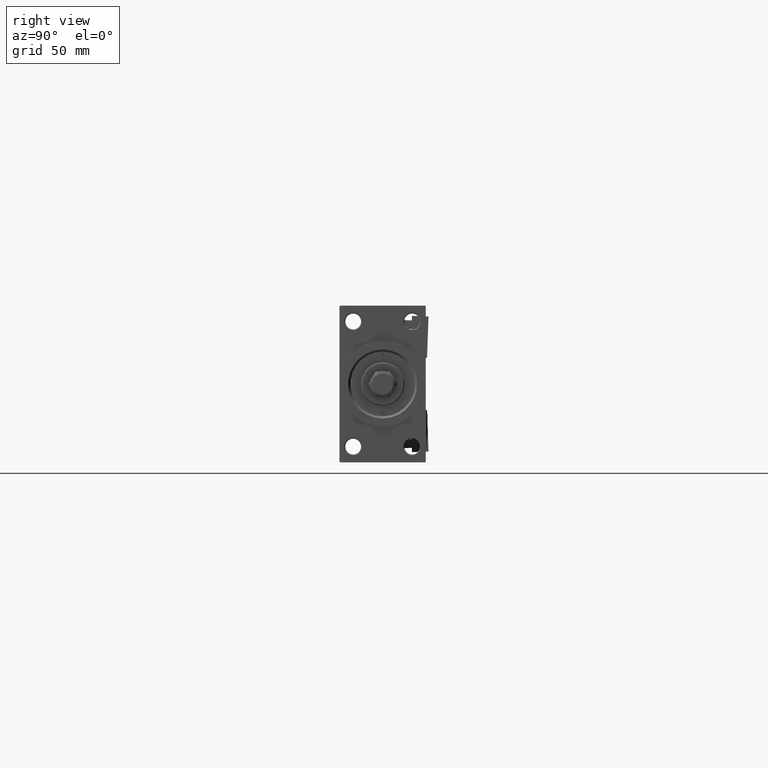
[diagram: clean part render]
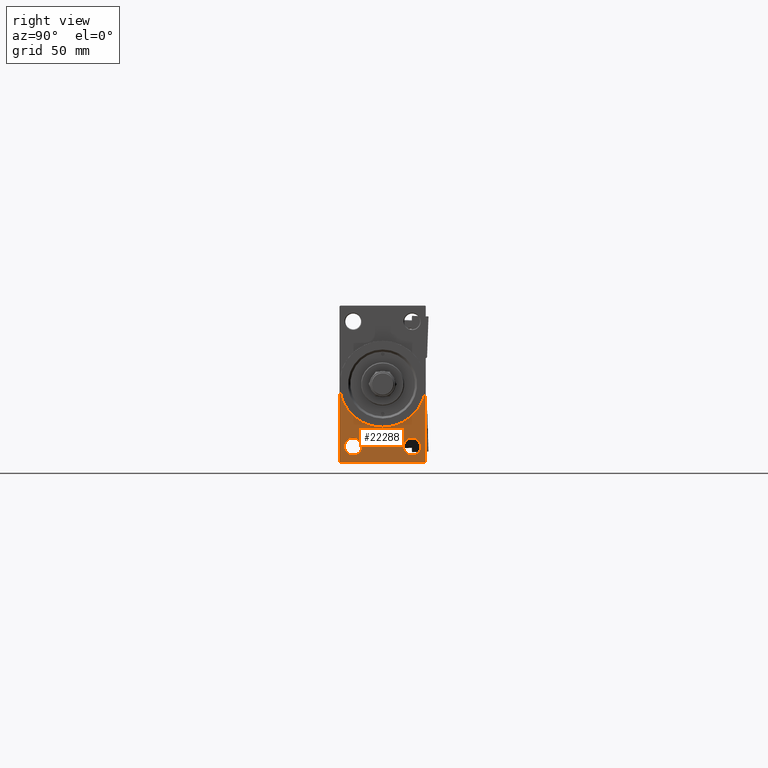
[diagram: same view with one face highlighted and labeled with its STEP entity id]
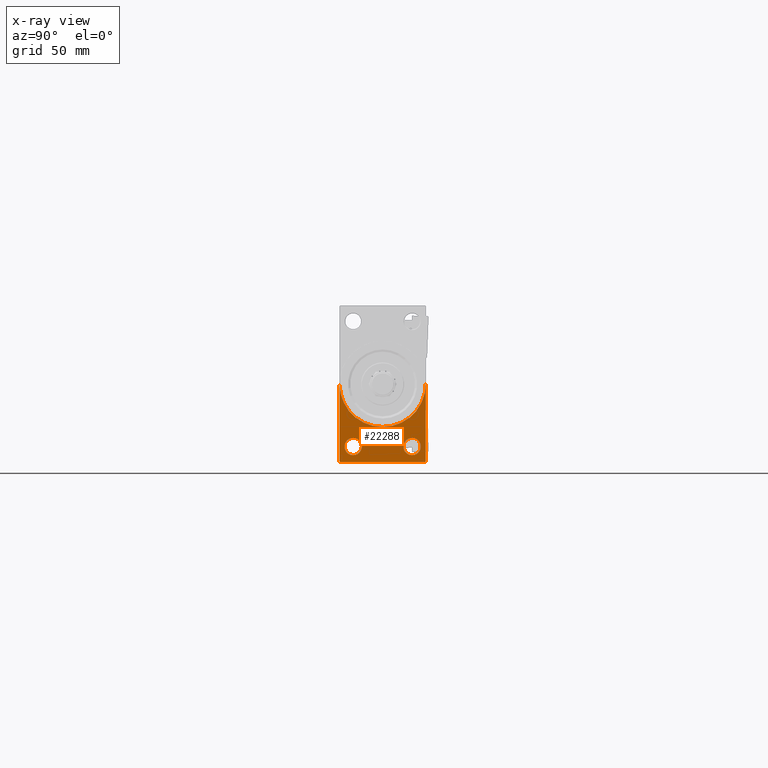
[diagram: x-ray of the same camera — body ghosted, the highlighted face saturated]
A machine part, right view. The second image highlights one B-rep face of the part: STEP entity #22288.
The next image is the same camera in x-ray: the body ghosted, the highlighted face saturated — about 0% of this face is hidden behind the body in this view.
In plain terms, the highlighted planar face has unit normal (-1, 0, 0).
Its self-contained STEP definition (entity closure, byte-faithful):
#260 = ORIENTED_EDGE ( 'NONE', *, *, #43874, .T. ) ;
#1281 = CARTESIAN_POINT ( 'NONE',  ( 418.0000000000000000, -30.00000000000000000, 0.000000000000000000 ) ) ;
#2021 = CARTESIAN_POINT ( 'NONE',  ( 418.0000000000000000, -20.50000000000000000, -43.50000000000000000 ) ) ;
#2920 = CARTESIAN_POINT ( 'NONE',  ( 418.0000000000000000, -20.50000000000000000, -37.50000000000004974 ) ) ;
#3147 = CARTESIAN_POINT ( 'NONE',  ( 418.0000000000000000, 20.50000000000000000, -43.50000000000000000 ) ) ;
#6370 = DIRECTION ( 'NONE',  ( 1.000000000000000000, 0.000000000000000000, 0.000000000000000000 ) ) ;
#6658 = DIRECTION ( 'NONE',  ( -1.000000000000000000, 0.000000000000000000, -0.000000000000000000 ) ) ;
#6889 = DIRECTION ( 'NONE',  ( 0.000000000000000000, 0.000000000000000000, -1.000000000000000000 ) ) ;
#6913 = CARTESIAN_POINT ( 'NONE',  ( 418.0000000000000000, -20.50000000000000000, -43.50000000000000000 ) ) ;
#7143 = CIRCLE ( 'NONE', #22892, 5.999999999999950262 ) ;
#7208 = CIRCLE ( 'NONE', #33712, 5.999999999999950262 ) ;
#7209 = CARTESIAN_POINT ( 'NONE',  ( 418.0000000000000000, -30.00000000000000000, 54.50000000000000000 ) ) ;
#7285 = DIRECTION ( 'NONE',  ( 0.000000000000000000, 0.000000000000000000, 1.000000000000000000 ) ) ;
#8018 = VERTEX_POINT ( 'NONE', #1281 ) ;
#8177 = VECTOR ( 'NONE', #51260, 1000.000000000000114 ) ;
#9315 = CARTESIAN_POINT ( 'NONE',  ( 418.0000000000000000, -29.49999999999994671, -54.50000000000000000 ) ) ;
#9932 = VECTOR ( 'NONE', #27175, 1000.000000000000000 ) ;
#10146 = EDGE_CURVE ( 'NONE', #21589, #43742, #49767, .T. ) ;
#10234 = DIRECTION ( 'NONE',  ( 0.000000000000000000, 0.000000000000000000, 1.000000000000000000 ) ) ;
#10402 = CARTESIAN_POINT ( 'NONE',  ( 418.0000000000000000, 20.50000000000000000, -43.50000000000000000 ) ) ;
#10786 = ORIENTED_EDGE ( 'NONE', *, *, #50002, .T. ) ;
#14014 = CARTESIAN_POINT ( 'NONE',  ( 418.0000000000000000, 0.000000000000000000, 0.000000000000000000 ) ) ;
#15444 = DIRECTION ( 'NONE',  ( 0.000000000000000000, -1.000000000000000000, -1.156482317317871478E-16 ) ) ;
#15886 = EDGE_CURVE ( 'NONE', #35728, #42457, #24413, .T. ) ;
#16199 = CARTESIAN_POINT ( 'NONE',  ( 418.0000000000000000, 29.99999999999999645, -54.49999999999999289 ) ) ;
#17687 = VECTOR ( 'NONE', #39993, 1000.000000000000000 ) ;
#18192 = DIRECTION ( 'NONE',  ( -1.000000000000000000, 0.000000000000000000, -0.000000000000000000 ) ) ;
#18375 = VERTEX_POINT ( 'NONE', #20996 ) ;
#19017 = AXIS2_PLACEMENT_3D ( 'NONE', #46311, #6370, #6889 ) ;
#19072 = ORIENTED_EDGE ( 'NONE', *, *, #15886, .T. ) ;
#19202 = CIRCLE ( 'NONE', #43232, 5.999999999999950262 ) ;
#19809 = ORIENTED_EDGE ( 'NONE', *, *, #46349, .T. ) ;
#20219 = EDGE_LOOP ( 'NONE', ( #30307, #10786 ) ) ;
#20476 = CIRCLE ( 'NONE', #30433, 5.999999999999950262 ) ;
#20952 = DIRECTION ( 'NONE',  ( 0.000000000000000000, 0.000000000000000000, -1.000000000000000000 ) ) ;
#20996 = CARTESIAN_POINT ( 'NONE',  ( 418.0000000000000000, 29.99999999999999645, -53.99999999999993605 ) ) ;
#21589 = VERTEX_POINT ( 'NONE', #36863 ) ;
#22056 = DIRECTION ( 'NONE',  ( -1.000000000000000000, 0.000000000000000000, -0.000000000000000000 ) ) ;
#22288 = ADVANCED_FACE ( 'NONE', ( #24379, #40215, #37620 ), #45140, .F. ) ;
#22892 = AXIS2_PLACEMENT_3D ( 'NONE', #3147, #34804, #10234 ) ;
#23358 = CARTESIAN_POINT ( 'NONE',  ( 418.0000000000000000, 29.99999999999999645, 54.49999999999999289 ) ) ;
#24379 = FACE_BOUND ( 'NONE', #28319, .T. ) ;
#24413 = LINE ( 'NONE', #31943, #17687 ) ;
#24964 = VECTOR ( 'NONE', #39429, 1000.000000000000000 ) ;
#26109 = DIRECTION ( 'NONE',  ( 0.000000000000000000, 0.000000000000000000, 1.000000000000000000 ) ) ;
#27175 = DIRECTION ( 'NONE',  ( 0.000000000000000000, 0.000000000000000000, -1.000000000000000000 ) ) ;
#27292 = EDGE_CURVE ( 'NONE', #33277, #34571, #7208, .T. ) ;
#27436 = ORIENTED_EDGE ( 'NONE', *, *, #48852, .F. ) ;
#27923 = EDGE_CURVE ( 'NONE', #34571, #33277, #20476, .T. ) ;
#28070 = VERTEX_POINT ( 'NONE', #50516 ) ;
#28196 = AXIS2_PLACEMENT_3D ( 'NONE', #36260, #37033, #20952 ) ;
#28319 = EDGE_LOOP ( 'NONE', ( #38685, #38955 ) ) ;
#30267 = ORIENTED_EDGE ( 'NONE', *, *, #10146, .F. ) ;
#30307 = ORIENTED_EDGE ( 'NONE', *, *, #34058, .T. ) ;
#30398 = EDGE_LOOP ( 'NONE', ( #19809, #19072, #32420, #260, #27436, #30267, #47981 ) ) ;
#30433 = AXIS2_PLACEMENT_3D ( 'NONE', #2021, #37562, #41456 ) ;
#31302 = CARTESIAN_POINT ( 'NONE',  ( 418.0000000000000000, 29.99999999999999645, -53.99999999999993605 ) ) ;
#31876 = LINE ( 'NONE', #23358, #24964 ) ;
#31943 = CARTESIAN_POINT ( 'NONE',  ( 418.0000000000000000, -29.49999999999994671, -54.50000000000000000 ) ) ;
#32420 = ORIENTED_EDGE ( 'NONE', *, *, #47563, .F. ) ;
#33277 = VERTEX_POINT ( 'NONE', #2920 ) ;
#33712 = AXIS2_PLACEMENT_3D ( 'NONE', #6913, #6658, #26109 ) ;
#33718 = CARTESIAN_POINT ( 'NONE',  ( 418.0000000000000000, 29.49999999999993960, -54.49999999999999289 ) ) ;
#34058 = EDGE_CURVE ( 'NONE', #43699, #28070, #7143, .T. ) ;
#34571 = VERTEX_POINT ( 'NONE', #40399 ) ;
#34804 = DIRECTION ( 'NONE',  ( -1.000000000000000000, 0.000000000000000000, -0.000000000000000000 ) ) ;
#35728 = VERTEX_POINT ( 'NONE', #48000 ) ;
#36260 = CARTESIAN_POINT ( 'NONE',  ( 418.0000000000000000, 0.000000000000000000, 0.000000000000000000 ) ) ;
#36863 = CARTESIAN_POINT ( 'NONE',  ( 418.0000000000000000, 3.673940397442059178E-15, -30.00000000000000000 ) ) ;
#37033 = DIRECTION ( 'NONE',  ( 1.000000000000000000, 0.000000000000000000, 0.000000000000000000 ) ) ;
#37562 = DIRECTION ( 'NONE',  ( -1.000000000000000000, 0.000000000000000000, -0.000000000000000000 ) ) ;
#37620 = FACE_OUTER_BOUND ( 'NONE', #30398, .T. ) ;
#38334 = CARTESIAN_POINT ( 'NONE',  ( 418.0000000000000000, 30.00000000000000000, 0.000000000000000000 ) ) ;
#38685 = ORIENTED_EDGE ( 'NONE', *, *, #27923, .T. ) ;
#38955 = ORIENTED_EDGE ( 'NONE', *, *, #27292, .T. ) ;
#38992 = VECTOR ( 'NONE', #15444, 1000.000000000000000 ) ;
#39429 = DIRECTION ( 'NONE',  ( 0.000000000000000000, 0.000000000000000000, -1.000000000000000000 ) ) ;
#39993 = DIRECTION ( 'NONE',  ( 0.000000000000000000, 0.7071067811865352493, -0.7071067811865597852 ) ) ;
#40215 = FACE_BOUND ( 'NONE', #20219, .T. ) ;
#40399 = CARTESIAN_POINT ( 'NONE',  ( 418.0000000000000000, -20.50000000000000000, -49.49999999999995026 ) ) ;
#41379 = CIRCLE ( 'NONE', #19017, 30.00000000000000000 ) ;
#41450 = CARTESIAN_POINT ( 'NONE',  ( 418.0000000000000000, 20.50000000000000000, -49.49999999999995026 ) ) ;
#41456 = DIRECTION ( 'NONE',  ( 0.000000000000000000, 0.000000000000000000, 1.000000000000000000 ) ) ;
#42457 = VERTEX_POINT ( 'NONE', #9315 ) ;
#42477 = LINE ( 'NONE', #31302, #8177 ) ;
#42637 = VERTEX_POINT ( 'NONE', #33718 ) ;
#43232 = AXIS2_PLACEMENT_3D ( 'NONE', #10402, #18192, #7285 ) ;
#43699 = VERTEX_POINT ( 'NONE', #41450 ) ;
#43742 = VERTEX_POINT ( 'NONE', #38334 ) ;
#43874 = EDGE_CURVE ( 'NONE', #42637, #18375, #42477, .T. ) ;
#44200 = LINE ( 'NONE', #16199, #38992 ) ;
#44255 = AXIS2_PLACEMENT_3D ( 'NONE', #14014, #22056, #48762 ) ;
#45140 = PLANE ( 'NONE',  #44255 ) ;
#45684 = EDGE_CURVE ( 'NONE', #8018, #21589, #41379, .T. ) ;
#46311 = CARTESIAN_POINT ( 'NONE',  ( 418.0000000000000000, 0.000000000000000000, 0.000000000000000000 ) ) ;
#46349 = EDGE_CURVE ( 'NONE', #8018, #35728, #46895, .T. ) ;
#46895 = LINE ( 'NONE', #7209, #9932 ) ;
#47563 = EDGE_CURVE ( 'NONE', #42637, #42457, #44200, .T. ) ;
#47981 = ORIENTED_EDGE ( 'NONE', *, *, #45684, .F. ) ;
#48000 = CARTESIAN_POINT ( 'NONE',  ( 418.0000000000000000, -30.00000000000000000, -53.99999999999992895 ) ) ;
#48762 = DIRECTION ( 'NONE',  ( -0.000000000000000000, 0.000000000000000000, 1.000000000000000000 ) ) ;
#48852 = EDGE_CURVE ( 'NONE', #43742, #18375, #31876, .T. ) ;
#49767 = CIRCLE ( 'NONE', #28196, 30.00000000000000000 ) ;
#50002 = EDGE_CURVE ( 'NONE', #28070, #43699, #19202, .T. ) ;
#50516 = CARTESIAN_POINT ( 'NONE',  ( 418.0000000000000000, 20.50000000000000000, -37.50000000000004974 ) ) ;
#51260 = DIRECTION ( 'NONE',  ( -0.000000000000000000, 0.7071067811865474617, 0.7071067811865474617 ) ) ;